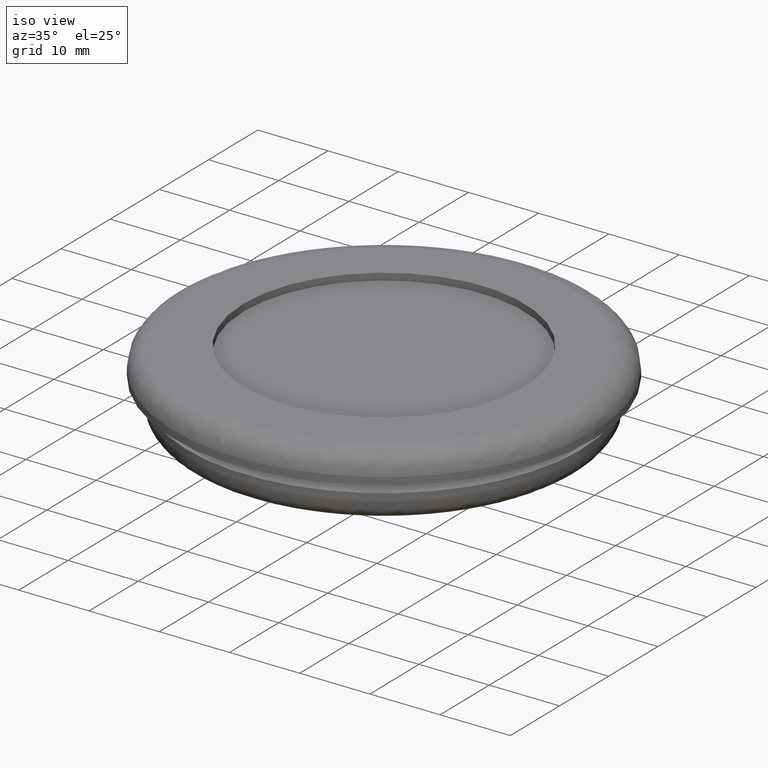
[diagram: clean part render]
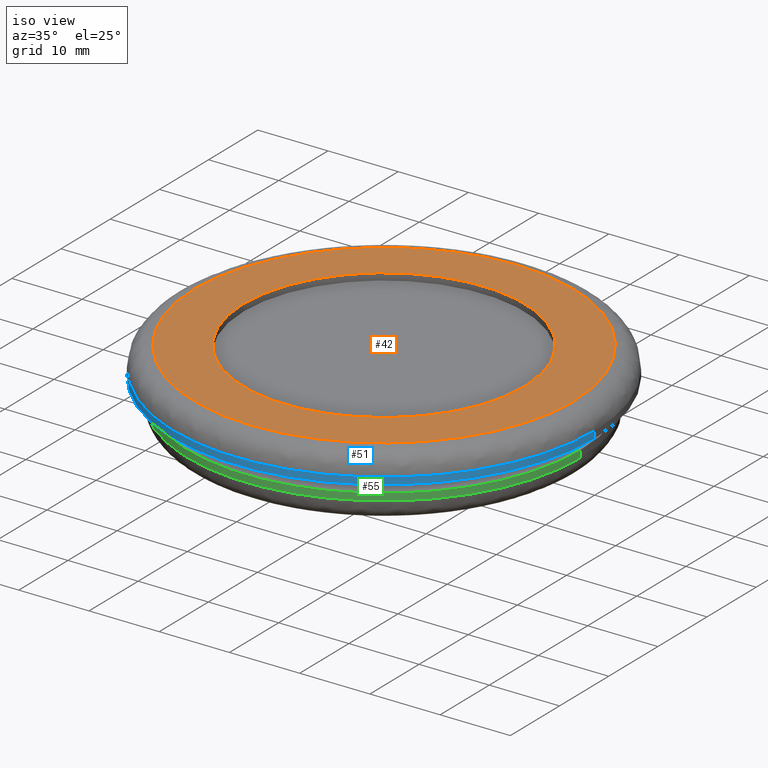
[diagram: same view with three faces highlighted in distinct colors, each labeled with its STEP entity id]
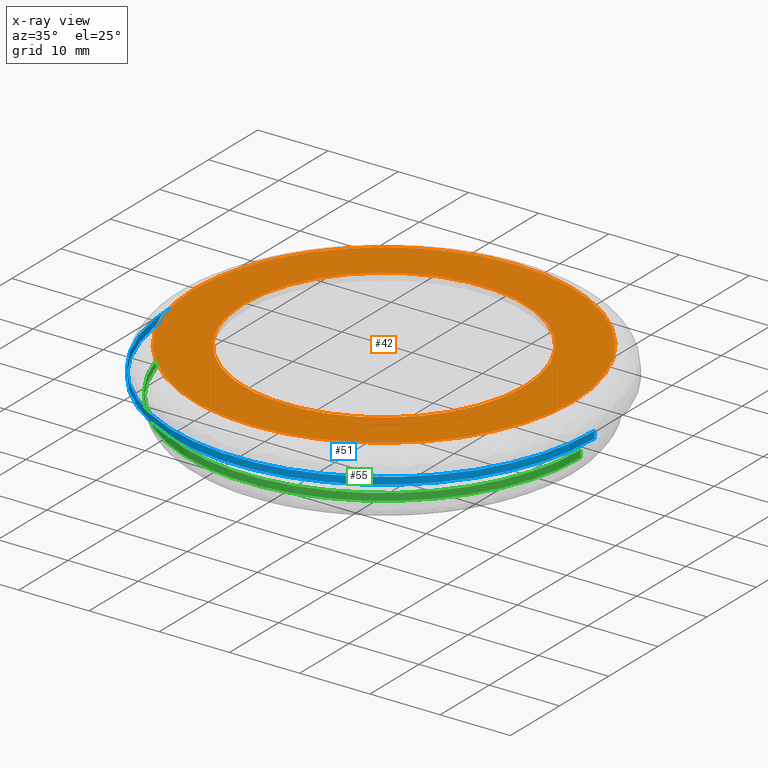
[diagram: x-ray of the same camera — body ghosted, the three highlighted faces saturated]
A machine part, iso view with three faces highlighted in distinct colors.
The next image is the same camera in x-ray (body ghosted, the three faces saturated) — at least one of them is partly hidden behind the body in this view.
Their STEP definitions:

[orange] entity #42 — the highlighted planar face has unit normal (-0, 0, -1).
#42=ADVANCED_FACE('',(#81,#82),#80,.F.);
#80=PLANE('',#277);
#81=FACE_OUTER_BOUND('',#278,.T.);
#82=FACE_BOUND('',#279,.T.);
#274=CARTESIAN_POINT('',(6.21000000000E+01,-5.61184461653E+01,-2.84217094302E-14));
#275=DIRECTION('',(-0.00000000000E+00,0.00000000000E+00,-1.00000000000E+00));
#276=DIRECTION('',(-1.00000000000E+00,0.00000000000E+00,0.00000000000E+00));
#277=AXIS2_PLACEMENT_3D('',#274,#275,#276);
#278=EDGE_LOOP('',(#456,#457));
#279=EDGE_LOOP('',(#458,#459));
#456=ORIENTED_EDGE('',*,*,#532,.F.);
#457=ORIENTED_EDGE('',*,*,#533,.F.);
#458=ORIENTED_EDGE('',*,*,#534,.T.);
#459=ORIENTED_EDGE('',*,*,#535,.T.);
#532=EDGE_CURVE('',#594,#595,#596,.T.);
#533=EDGE_CURVE('',#595,#594,#602,.T.);
#534=EDGE_CURVE('',#608,#609,#610,.T.);
#535=EDGE_CURVE('',#609,#608,#616,.T.);
#594=VERTEX_POINT('',#838);
#595=VERTEX_POINT('',#839);
#596=CIRCLE('',#843,2.70000000000E+01);
#602=CIRCLE('',#847,2.70000000000E+01);
#608=VERTEX_POINT('',#848);
#609=VERTEX_POINT('',#849);
#610=CIRCLE('',#853,2.00000000000E+01);
#616=CIRCLE('',#857,2.00000000000E+01);
#838=CARTESIAN_POINT('',(2.70000000000E+01,1.18423789293E-15,-2.84217094304E-14));
#839=CARTESIAN_POINT('',(-2.70000000000E+01,0.00000000000E+00,-2.84217094304E-14));
#840=CARTESIAN_POINT('',(-1.19371179608E-12,0.00000000000E+00,-2.84217094304E-14));
#841=DIRECTION('',(-0.00000000000E+00,0.00000000000E+00,-1.00000000000E+00));
#842=DIRECTION('',(-1.00000000000E+00,-1.22460635382E-16,0.00000000000E+00));
#843=AXIS2_PLACEMENT_3D('',#840,#841,#842);
#844=CARTESIAN_POINT('',(-1.19371179608E-12,0.00000000000E+00,-2.84217094304E-14));
#845=DIRECTION('',(-0.00000000000E+00,0.00000000000E+00,-1.00000000000E+00));
#846=DIRECTION('',(-1.00000000000E+00,-1.22460635382E-16,0.00000000000E+00));
#847=AXIS2_PLACEMENT_3D('',#844,#845,#846);
#848=CARTESIAN_POINT('',(-2.00000000000E+01,0.00000000000E+00,-2.84217094299E-14));
#849=CARTESIAN_POINT('',(2.00000000000E+01,0.00000000000E+00,-2.84217094299E-14));
#850=CARTESIAN_POINT('',(-1.19371179608E-12,0.00000000000E+00,-2.84217094299E-14));
#851=DIRECTION('',(-0.00000000000E+00,0.00000000000E+00,-1.00000000000E+00));
#852=DIRECTION('',(-1.00000000000E+00,-1.22460635382E-16,0.00000000000E+00));
#853=AXIS2_PLACEMENT_3D('',#850,#851,#852);
#854=CARTESIAN_POINT('',(-1.19371179608E-12,0.00000000000E+00,-2.84217094299E-14));
#855=DIRECTION('',(-0.00000000000E+00,0.00000000000E+00,-1.00000000000E+00));
#856=DIRECTION('',(-1.00000000000E+00,-1.22460635382E-16,0.00000000000E+00));
#857=AXIS2_PLACEMENT_3D('',#854,#855,#856);

[blue] entity #51 — the highlighted cylindrical surface (partial cylindrical patch) has radius 30 mm, axis along (0, -0, 1).
#51=ADVANCED_FACE('',(#175),#174,.T.);
#174=CYLINDRICAL_SURFACE('',#368,3.00000000000E+01);
#175=FACE_OUTER_BOUND('',#369,.T.);
#365=CARTESIAN_POINT('',(-1.19371179608E-12,0.00000000000E+00,0.00000000000E+00));
#366=DIRECTION('',(0.00000000000E+00,-0.00000000000E+00,1.00000000000E+00));
#367=DIRECTION('',(1.00000000000E+00,0.00000000000E+00,0.00000000000E+00));
#368=AXIS2_PLACEMENT_3D('',#365,#366,#367);
#369=EDGE_LOOP('',(#492,#493,#494,#495));
#492=ORIENTED_EDGE('',*,*,#537,.F.);
#493=ORIENTED_EDGE('',*,*,#554,.T.);
#494=ORIENTED_EDGE('',*,*,#550,.T.);
#495=ORIENTED_EDGE('',*,*,#555,.F.);
#537=EDGE_CURVE('',#623,#622,#630,.T.);
#550=EDGE_CURVE('',#718,#719,#720,.T.);
#554=EDGE_CURVE('',#623,#718,#744,.T.);
#555=EDGE_CURVE('',#622,#719,#750,.T.);
#622=VERTEX_POINT('',#858);
#623=VERTEX_POINT('',#859);
#630=CIRCLE('',#867,3.00000000000E+01);
#718=VERTEX_POINT('',#922);
#719=VERTEX_POINT('',#923);
#720=CIRCLE('',#927,3.00000000000E+01);
#744=(BOUNDED_CURVE() B_SPLINE_CURVE(1,(#940,#941),.UNSPECIFIED.,.F.,.F.) B_SPLINE_CURVE_WITH_KNOTS((2,2),(8.33332935974E-02,9.16666633252E-01),.UNSPECIFIED.) CURVE() GEOMETRIC_REPRESENTATION_ITEM() RATIONAL_B_SPLINE_CURVE((1.00000000000E+00,1.00000000000E+00)) REPRESENTATION_ITEM('') );
#750=(BOUNDED_CURVE() B_SPLINE_CURVE(1,(#942,#943),.UNSPECIFIED.,.F.,.F.) B_SPLINE_CURVE_WITH_KNOTS((2,2),(8.33333333333E-02,9.16666666667E-01),.UNSPECIFIED.) CURVE() GEOMETRIC_REPRESENTATION_ITEM() RATIONAL_B_SPLINE_CURVE((7.50000000000E-01,7.50000000000E-01)) REPRESENTATION_ITEM('') );
#858=CARTESIAN_POINT('',(-3.00000000000E+01,0.00000000000E+00,-4.00000000001E+00));
#859=CARTESIAN_POINT('',(3.00000000000E+01,3.55271367880E-15,-4.00000000001E+00));
#864=CARTESIAN_POINT('',(-1.19371179608E-12,0.00000000000E+00,-4.00000000001E+00));
#865=DIRECTION('',(-0.00000000000E+00,0.00000000000E+00,-1.00000000000E+00));
#866=DIRECTION('',(-1.00000000000E+00,-1.22460635382E-16,0.00000000000E+00));
#867=AXIS2_PLACEMENT_3D('',#864,#865,#866);
#922=CARTESIAN_POINT('',(3.00000000000E+01,3.55271367880E-15,-3.00000000000E+00));
#923=CARTESIAN_POINT('',(-3.00000000000E+01,0.00000000000E+00,-3.00000000000E+00));
#924=CARTESIAN_POINT('',(-1.19371179608E-12,0.00000000000E+00,-3.00000000000E+00));
#925=DIRECTION('',(-0.00000000000E+00,0.00000000000E+00,-1.00000000000E+00));
#926=DIRECTION('',(-1.00000000000E+00,-1.22460635382E-16,0.00000000000E+00));
#927=AXIS2_PLACEMENT_3D('',#924,#925,#926);
#940=CARTESIAN_POINT('',(3.00000000000E+01,0.00000000000E+00,-4.00000004769E+00));
#941=CARTESIAN_POINT('',(3.00000000000E+01,0.00000000000E+00,-3.00000004010E+00));
#942=CARTESIAN_POINT('',(-3.00000000000E+01,0.00000000000E+00,-4.00000000001E+00));
#943=CARTESIAN_POINT('',(-3.00000000000E+01,0.00000000000E+00,-3.00000000000E+00));

[green] entity #55 — the highlighted cylindrical surface (partial cylindrical patch) has radius 28 mm, axis along (0, -0, 1).
#55=ADVANCED_FACE('',(#215),#214,.T.);
#214=CYLINDRICAL_SURFACE('',#388,2.80000000000E+01);
#215=FACE_OUTER_BOUND('',#389,.T.);
#385=CARTESIAN_POINT('',(-1.19371179608E-12,0.00000000000E+00,0.00000000000E+00));
#386=DIRECTION('',(0.00000000000E+00,-0.00000000000E+00,1.00000000000E+00));
#387=DIRECTION('',(1.00000000000E+00,-0.00000000000E+00,-0.00000000000E+00));
#388=AXIS2_PLACEMENT_3D('',#385,#386,#387);
#389=EDGE_LOOP('',(#508,#509,#510,#511));
#508=ORIENTED_EDGE('',*,*,#561,.F.);
#509=ORIENTED_EDGE('',*,*,#558,.T.);
#510=ORIENTED_EDGE('',*,*,#540,.T.);
#511=ORIENTED_EDGE('',*,*,#560,.F.);
#540=EDGE_CURVE('',#650,#651,#652,.T.);
#558=EDGE_CURVE('',#768,#650,#769,.T.);
#560=EDGE_CURVE('',#775,#651,#782,.T.);
#561=EDGE_CURVE('',#768,#775,#788,.T.);
#650=VERTEX_POINT('',#878);
#651=VERTEX_POINT('',#879);
#652=CIRCLE('',#883,2.80000000000E+01);
#768=VERTEX_POINT('',#948);
#769=(BOUNDED_CURVE() B_SPLINE_CURVE(1,(#949,#950),.UNSPECIFIED.,.F.,.F.) B_SPLINE_CURVE_WITH_KNOTS((2,2),(8.33332935974E-02,9.16666633252E-01),.UNSPECIFIED.) CURVE() GEOMETRIC_REPRESENTATION_ITEM() RATIONAL_B_SPLINE_CURVE((1.00000000000E+00,1.00000000000E+00)) REPRESENTATION_ITEM('') );
#775=VERTEX_POINT('',#951);
#782=(BOUNDED_CURVE() B_SPLINE_CURVE(1,(#956,#957),.UNSPECIFIED.,.F.,.F.) B_SPLINE_CURVE_WITH_KNOTS((2,2),(8.33333333333E-02,9.16666666667E-01),.UNSPECIFIED.) CURVE() GEOMETRIC_REPRESENTATION_ITEM() RATIONAL_B_SPLINE_CURVE((7.50000000000E-01,7.50000000000E-01)) REPRESENTATION_ITEM('') );
#788=CIRCLE('',#961,2.80000000000E+01);
#878=CARTESIAN_POINT('',(2.80000000000E+01,1.18423789293E-15,-6.00000000001E+00));
#879=CARTESIAN_POINT('',(-2.80000000000E+01,0.00000000000E+00,-6.00000000001E+00));
#880=CARTESIAN_POINT('',(-1.19371179608E-12,0.00000000000E+00,-6.00000000001E+00));
#881=DIRECTION('',(-0.00000000000E+00,0.00000000000E+00,-1.00000000000E+00));
#882=DIRECTION('',(-1.00000000000E+00,-1.22460635382E-16,0.00000000000E+00));
#883=AXIS2_PLACEMENT_3D('',#880,#881,#882);
#948=CARTESIAN_POINT('',(2.80000000000E+01,1.18423789293E-15,-7.00000000000E+00));
#949=CARTESIAN_POINT('',(2.80000000000E+01,0.00000000000E+00,-7.00000004768E+00));
#950=CARTESIAN_POINT('',(2.80000000000E+01,0.00000000000E+00,-6.00000004010E+00));
#951=CARTESIAN_POINT('',(-2.80000000000E+01,0.00000000000E+00,-7.00000000000E+00));
#956=CARTESIAN_POINT('',(-2.80000000000E+01,0.00000000000E+00,-7.00000000000E+00));
#957=CARTESIAN_POINT('',(-2.80000000000E+01,0.00000000000E+00,-6.00000000001E+00));
#958=CARTESIAN_POINT('',(-1.19371179608E-12,0.00000000000E+00,-7.00000000000E+00));
#959=DIRECTION('',(-0.00000000000E+00,0.00000000000E+00,-1.00000000000E+00));
#960=DIRECTION('',(-1.00000000000E+00,-1.22460635382E-16,0.00000000000E+00));
#961=AXIS2_PLACEMENT_3D('',#958,#959,#960);